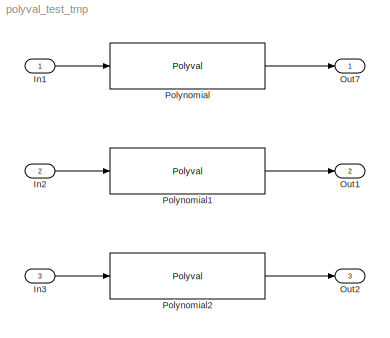
MODEL polyval_test_tmp
KIND model
BLOCK [Inport] In1
  IconDisplay = Port number
  PortDimensions = 1
  SID = 1
BLOCK [Inport] In2
  IconDisplay = Port number
  Port = 2
  PortDimensions = 3
  SID = 113
BLOCK [Inport] In3
  IconDisplay = Port number
  Port = 3
  PortDimensions = [2 3]
  SID = 116
BLOCK [Outport] Out1
  IconDisplay = Port number
  Port = 2
  SID = 115
BLOCK [Outport] Out2
  IconDisplay = Port number
  Port = 3
  SID = 118
BLOCK [Outport] Out7
  IconDisplay = Port number
  SID = 100
BLOCK [Polyval] Polynomial
  Coefs = [ 3, 2, -10 ]
  SID = 112
BLOCK [Polyval] Polynomial1
  Coefs = [ 3, 2.5e-006, -10 ]
  SID = 114
BLOCK [Polyval] Polynomial2
  Coefs = [ -15.8, .5e-15, -10 ]
  SID = 117
LINE In1:1 -> Polynomial:1
LINE In2:1 -> Polynomial1:1
LINE In3:1 -> Polynomial2:1
LINE Polynomial1:1 -> Out1:1
LINE Polynomial2:1 -> Out2:1
LINE Polynomial:1 -> Out7:1
